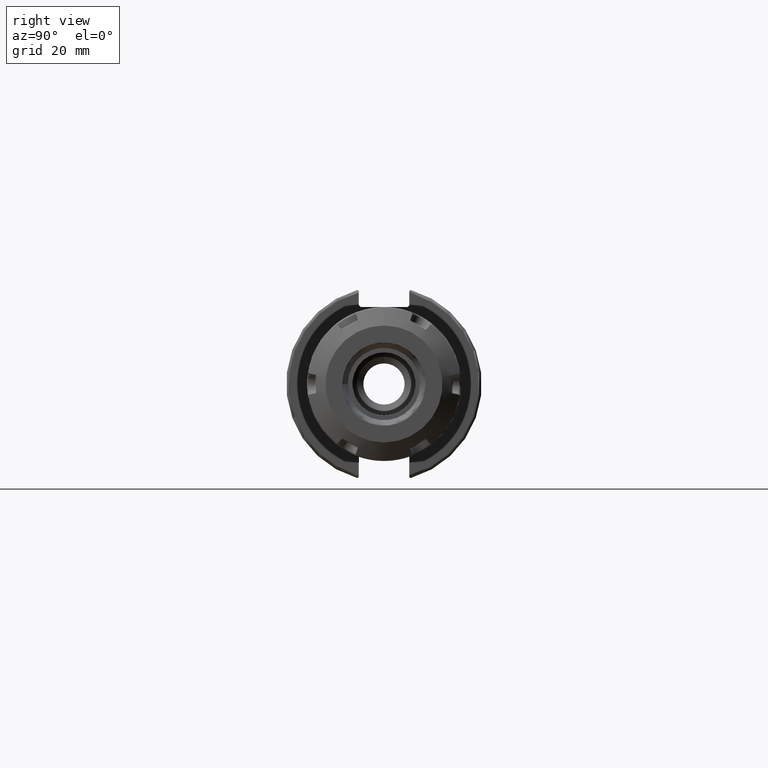
[diagram: clean part render]
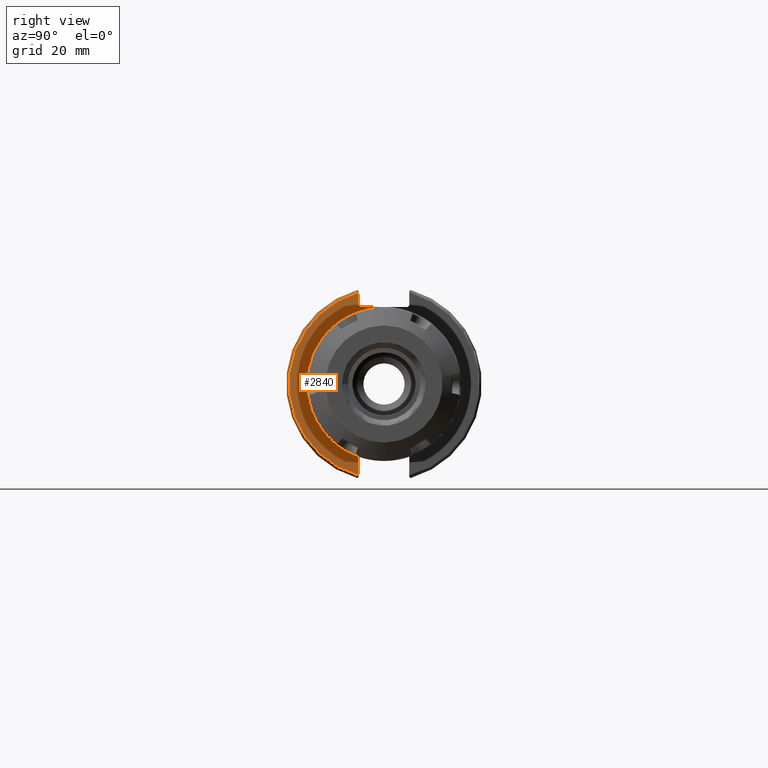
[diagram: same view with one face highlighted and labeled with its STEP entity id]
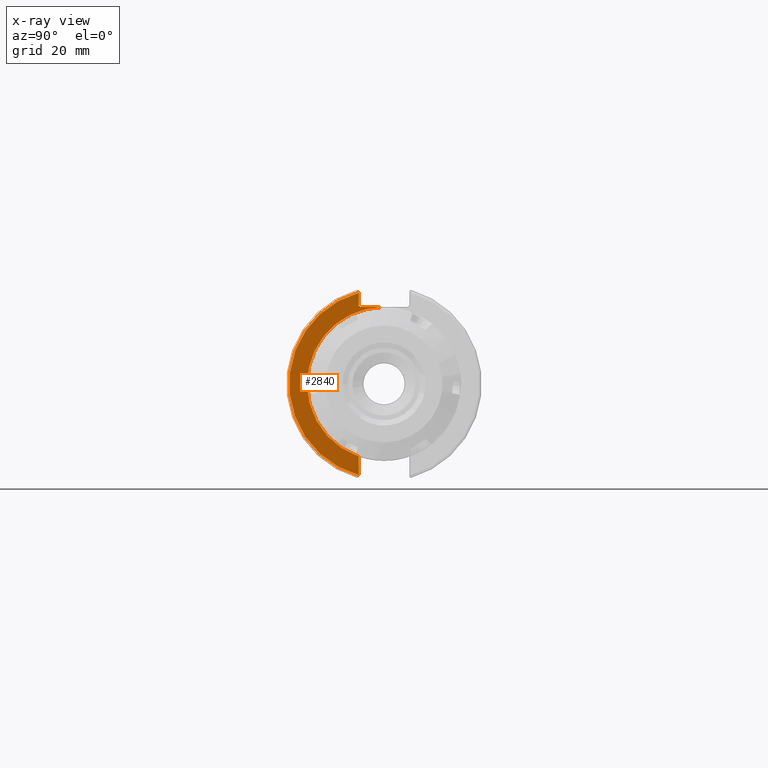
[diagram: x-ray of the same camera — body ghosted, the highlighted face saturated]
A machine part, right view. The second image highlights one B-rep face of the part: STEP entity #2840.
The next image is the same camera in x-ray: the body ghosted, the highlighted face saturated — about 2% of this face is hidden behind the body in this view.
In plain terms, the highlighted planar face has unit normal (1, 0, 0).
Its self-contained STEP definition (entity closure, byte-faithful):
#179=PLANE('',#3097);
#302=FACE_OUTER_BOUND('',#474,.T.);
#474=EDGE_LOOP('',(#1968,#1969,#1970,#1971,#1972,#1973,#1974));
#648=CIRCLE('',#3075,25.);
#650=CIRCLE('',#3077,25.);
#661=CIRCLE('',#3098,30.75);
#783=LINE('',#4327,#957);
#784=LINE('',#4329,#958);
#785=LINE('',#4331,#959);
#786=LINE('',#4334,#960);
#957=VECTOR('',#3448,10.);
#958=VECTOR('',#3449,10.);
#959=VECTOR('',#3450,10.);
#960=VECTOR('',#3453,10.);
#1216=VERTEX_POINT('',#4204);
#1217=VERTEX_POINT('',#4206);
#1219=VERTEX_POINT('',#4211);
#1234=VERTEX_POINT('',#4326);
#1235=VERTEX_POINT('',#4328);
#1236=VERTEX_POINT('',#4330);
#1237=VERTEX_POINT('',#4332);
#1494=EDGE_CURVE('',#1217,#1216,#648,.T.);
#1498=EDGE_CURVE('',#1216,#1219,#650,.T.);
#1519=EDGE_CURVE('',#1219,#1234,#783,.T.);
#1520=EDGE_CURVE('',#1235,#1234,#784,.T.);
#1521=EDGE_CURVE('',#1235,#1236,#785,.T.);
#1522=EDGE_CURVE('',#1237,#1236,#661,.T.);
#1523=EDGE_CURVE('',#1237,#1217,#786,.T.);
#1968=ORIENTED_EDGE('',*,*,#1494,.T.);
#1969=ORIENTED_EDGE('',*,*,#1498,.T.);
#1970=ORIENTED_EDGE('',*,*,#1519,.T.);
#1971=ORIENTED_EDGE('',*,*,#1520,.F.);
#1972=ORIENTED_EDGE('',*,*,#1521,.T.);
#1973=ORIENTED_EDGE('',*,*,#1522,.F.);
#1974=ORIENTED_EDGE('',*,*,#1523,.T.);
#2840=ADVANCED_FACE('',(#302),#179,.T.);
#3075=AXIS2_PLACEMENT_3D('',#4207,#3394,#3395);
#3077=AXIS2_PLACEMENT_3D('',#4213,#3400,#3401);
#3097=AXIS2_PLACEMENT_3D('',#4325,#3446,#3447);
#3098=AXIS2_PLACEMENT_3D('',#4333,#3451,#3452);
#3394=DIRECTION('center_axis',(-1.,0.,0.));
#3395=DIRECTION('ref_axis',(0.,1.,0.));
#3400=DIRECTION('center_axis',(-1.,0.,0.));
#3401=DIRECTION('ref_axis',(0.,1.,0.));
#3446=DIRECTION('center_axis',(1.,0.,0.));
#3447=DIRECTION('ref_axis',(0.,0.,-1.));
#3448=DIRECTION('',(0.,-1.,0.));
#3449=DIRECTION('',(0.,0.70710678118655,-0.707106781186545));
#3450=DIRECTION('',(0.,0.,1.));
#3451=DIRECTION('center_axis',(-1.,0.,0.));
#3452=DIRECTION('ref_axis',(0.,-1.,1.60812264967664E-16));
#3453=DIRECTION('',(0.,0.,1.));
#4204=CARTESIAN_POINT('',(19.05,-25.,-3.06161699786838E-15));
#4206=CARTESIAN_POINT('',(19.05,-8.19,-23.6204127821679));
#4207=CARTESIAN_POINT('Origin',(19.05,0.,0.));
#4211=CARTESIAN_POINT('',(19.05,0.,25.));
#4213=CARTESIAN_POINT('Origin',(19.05,0.,0.));
#4325=CARTESIAN_POINT('Origin',(19.05,0.,0.));
#4326=CARTESIAN_POINT('',(19.05,-7.69,25.));
#4327=CARTESIAN_POINT('',(19.05,0.,25.));
#4328=CARTESIAN_POINT('',(19.05,-8.19,25.5));
#4329=CARTESIAN_POINT('',(19.05,0.357500000000014,16.9525));
#4330=CARTESIAN_POINT('',(19.05,-8.19,29.6392712461019));
#4331=CARTESIAN_POINT('',(19.05,-8.19,12.5));
#4332=CARTESIAN_POINT('',(19.05,-8.19,-29.6392712461019));
#4333=CARTESIAN_POINT('Origin',(19.05,0.,0.));
#4334=CARTESIAN_POINT('',(19.05,-8.19,-11.3));